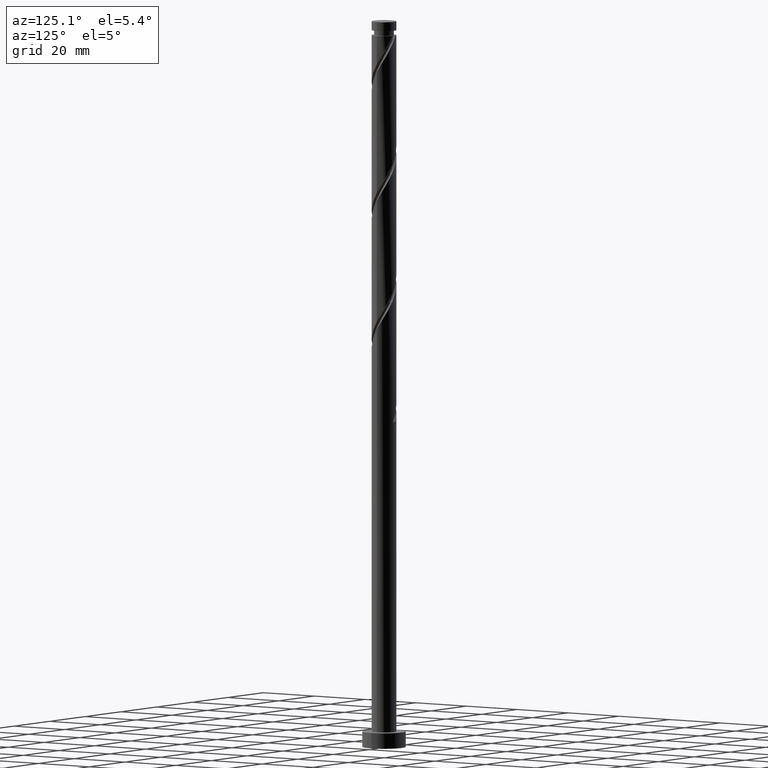
[diagram: clean part render]
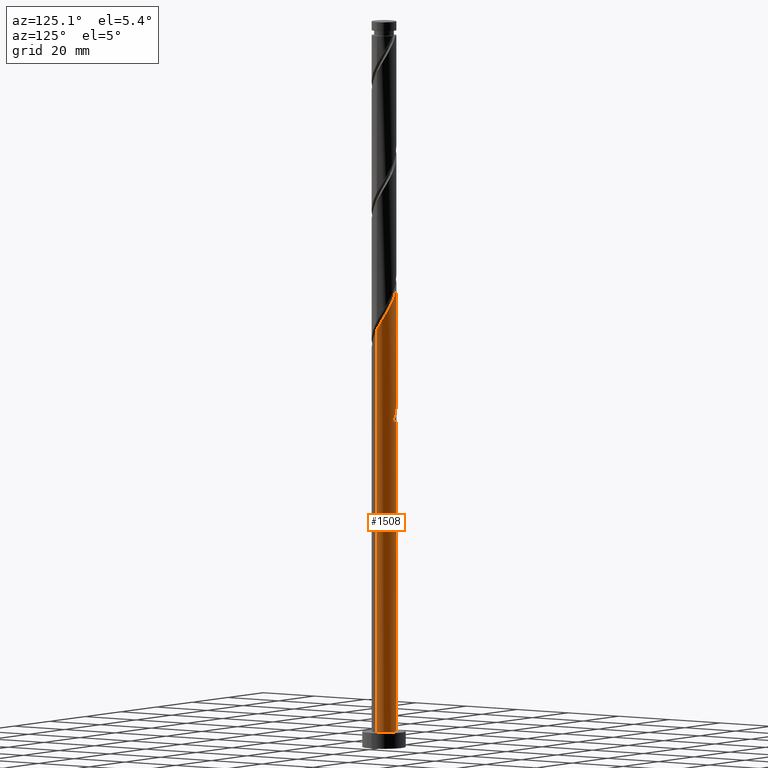
[diagram: same view with one face highlighted and labeled with its STEP entity id]
A machine part, auxiliary view. The second image highlights one B-rep face of the part: STEP entity #1508.
In plain terms, the highlighted cylindrical surface (edge-blend (fillet) strip) has radius 4 mm, axis along (-0, -0, -1).
Its self-contained STEP definition (entity closure, byte-faithful):
#19 = ORIENTED_EDGE ( 'NONE', *, *, #1791, .F. ) ;
#25 = VECTOR ( 'NONE', #831, 1000.000000000000000 ) ;
#32 = ORIENTED_EDGE ( 'NONE', *, *, #186, .T. ) ;
#53 = CARTESIAN_POINT ( 'NONE',  ( -3.948791133313475754, 0.8018362386540688336, 115.9398017775529723 ) ) ;
#66 = CARTESIAN_POINT ( 'NONE',  ( -0.7959899496852985701, 3.920000000000004370, 105.5231351108863151 ) ) ;
#70 = ORIENTED_EDGE ( 'NONE', *, *, #152, .F. ) ;
#84 = VECTOR ( 'NONE', #964, 1000.000000000000000 ) ;
#87 =( BOUNDED_CURVE ( )  B_SPLINE_CURVE ( 2, ( #1605, #334, #1334, #53, #94, #664, #230, #1557, #440, #1692, #704, #729, #1148, #698, #117, #295, #1707 ),
 .UNSPECIFIED., .F., .T. ) 
 B_SPLINE_CURVE_WITH_KNOTS ( ( 3, 2, 2, 2, 2, 2, 2, 2, 3 ),
 ( 0.9295271625973835494, 0.9326923076923077094, 0.9423076923076922906, 0.9519230769230768718, 0.9615384615384615641, 0.9711538461538461453, 0.9807692307692307265, 0.9903846153846154188, 1.000000000000000000 ),
 .UNSPECIFIED. ) 
 CURVE ( )  GEOMETRIC_REPRESENTATION_ITEM ( )  RATIONAL_B_SPLINE_CURVE ( ( 0.9061636035682788526, 0.9069090390690675019, 0.9090909090909238266, 0.9024626128164274785, 0.9090909090909238266, 0.9024626128164274785, 0.9090909090909238266, 0.9024626128164274785, 0.9090909090909238266, 0.9024626128164274785, 0.9090909090909238266, 0.9024626128164274785, 0.9090909090909238266, 0.9024626128164274785, 0.9090909090909238266, 0.9024626128164274785, 0.9090909090909238266 ) ) 
 REPRESENTATION_ITEM ( '' )  );
#94 = CARTESIAN_POINT ( 'NONE',  ( -3.795472800412702519, 1.262690073346326880, 115.1385197262709426 ) ) ;
#117 = CARTESIAN_POINT ( 'NONE',  ( -0.1652574756069100093, 3.996584787885279599, 107.1256992134504316 ) ) ;
#120 = CARTESIAN_POINT ( 'NONE',  ( 3.795472800412709624, 1.262690073346324660, 137.5744171621684018 ) ) ;
#129 = EDGE_CURVE ( 'NONE', #1507, #1627, #1377, .T. ) ;
#134 = ORIENTED_EDGE ( 'NONE', *, *, #129, .T. ) ;
#152 = EDGE_CURVE ( 'NONE', #503, #1627, #87, .T. ) ;
#154 = VERTEX_POINT ( 'NONE', #422 ) ;
#176 = DIRECTION ( 'NONE',  ( -0.000000000000000000, -0.000000000000000000, -1.000000000000000000 ) ) ;
#186 = EDGE_CURVE ( 'NONE', #1431, #768, #833, .T. ) ;
#225 = ORIENTED_EDGE ( 'NONE', *, *, #585, .T. ) ;
#230 = CARTESIAN_POINT ( 'NONE',  ( -3.383001745131675175, 2.134314689176840751, 113.5359556237068261 ) ) ;
#257 = CARTESIAN_POINT ( 'NONE',  ( -4.000000000000005329, -3.709072756255089963E-15, 156.2785465683278119 ) ) ;
#258 = LINE ( 'NONE', #817, #902 ) ;
#259 = LINE ( 'NONE', #989, #25 ) ;
#264 = CARTESIAN_POINT ( 'NONE',  ( 4.000000000000005329, 3.140747091990197197E-15, 135.4452132349944407 ) ) ;
#273 = CARTESIAN_POINT ( 'NONE',  ( 3.383001745131681837, 2.134314689176843416, 139.1769812647324898 ) ) ;
#282 = CARTESIAN_POINT ( 'NONE',  ( 1.116900737103333263, 3.840902594893298883, 143.9846735724247537 ) ) ;
#295 = CARTESIAN_POINT ( 'NONE',  ( 0.3200157754540378652, 4.016650678315774492, 106.3244171621683734 ) ) ;
#296 = EDGE_CURVE ( 'NONE', #154, #768, #259, .T. ) ;
#319 = DIRECTION ( 'NONE',  ( -1.000000000000000000, 0.000000000000000000, 0.000000000000000000 ) ) ;
#331 = CARTESIAN_POINT ( 'NONE',  ( 0.7959899496853001244, 3.919999999999999041, 105.5231351108863151 ) ) ;
#334 = CARTESIAN_POINT ( 'NONE',  ( -3.999999999999998224, 0.1590925213470881505, 117.0035527378118445 ) ) ;
#343 = CARTESIAN_POINT ( 'NONE',  ( -3.999999999999998224, 5.339270056383372193E-15, 117.2677236534448184 ) ) ;
#373 = EDGE_LOOP ( 'NONE', ( #1223, #225, #32, #1084, #1314, #134, #70, #19 ) ) ;
#386 = CARTESIAN_POINT ( 'NONE',  ( -3.869112783325353799, 1.125104012108398388, 112.7346735724247822 ) ) ;
#422 = CARTESIAN_POINT ( 'NONE',  ( -4.000000000000006217, 7.463013328110039892E-15, 114.6118799016610836 ) ) ;
#427 = CARTESIAN_POINT ( 'NONE',  ( 2.423996827517799879, 3.218715916066175797, 141.5808274185786217 ) ) ;
#440 = CARTESIAN_POINT ( 'NONE',  ( -2.773922925134606920, 2.881900693190635021, 111.9333915211427097 ) ) ;
#455 = CARTESIAN_POINT ( 'NONE',  ( -4.000000000000005329, -3.709072756255089963E-15, 156.2785465683278119 ) ) ;
#467 = CARTESIAN_POINT ( 'NONE',  ( -0.7959899496852987921, 3.920000000000005258, 147.1898017775529866 ) ) ;
#503 = VERTEX_POINT ( 'NONE', #343 ) ;
#534 = CARTESIAN_POINT ( 'NONE',  ( -0.7959899496852985701, 3.920000000000004370, 105.5231351108863151 ) ) ;
#585 = EDGE_CURVE ( 'NONE', #910, #1431, #816, .T. ) ;
#609 = CARTESIAN_POINT ( 'NONE',  ( -1.710977332407544127, 3.615599060734970838, 148.7923658801170461 ) ) ;
#616 = EDGE_CURVE ( 'NONE', #1507, #154, #1623, .T. ) ;
#621 = CARTESIAN_POINT ( 'NONE',  ( -3.869112783325353799, 1.125104012108398388, 154.4013402390914393 ) ) ;
#654 = CARTESIAN_POINT ( 'NONE',  ( -3.487428383617972028, 2.018349830254859700, 111.1321094698607084 ) ) ;
#664 = CARTESIAN_POINT ( 'NONE',  ( -3.642154467511929283, 1.723543908038583483, 114.3372376749888701 ) ) ;
#693 = CARTESIAN_POINT ( 'NONE',  ( 4.000000000000000000, 4.898587196589412829E-16, 5.000000000000000000 ) ) ;
#698 = CARTESIAN_POINT ( 'NONE',  ( -0.6505307266678578282, 3.976518897454783374, 107.9269812647324329 ) ) ;
#704 = CARTESIAN_POINT ( 'NONE',  ( -2.003633787528295240, 3.462001104198988877, 110.3308274185786217 ) ) ;
#716 = CARTESIAN_POINT ( 'NONE',  ( -0.3200157754540355892, 4.016650678315782486, 146.3885197262709141 ) ) ;
#729 = CARTESIAN_POINT ( 'NONE',  ( -1.583270747538798817, 3.705286292331802400, 109.5295453672965635 ) ) ;
#765 = DIRECTION ( 'NONE',  ( 0.000000000000000000, -8.673617379884018117E-15, -1.000000000000000000 ) ) ;
#768 = VERTEX_POINT ( 'NONE', #1243 ) ;
#790 = CARTESIAN_POINT ( 'NONE',  ( -1.710977332407544127, 3.615599060734970838, 107.1256992134504031 ) ) ;
#798 = CARTESIAN_POINT ( 'NONE',  ( -4.000000000000006217, 7.463013328110039892E-15, 114.6118799016610836 ) ) ;
#816 = LINE ( 'NONE', #1235, #84 ) ;
#817 = CARTESIAN_POINT ( 'NONE',  ( -4.000000000000000000, 0.000000000000000000, 235.0000000000000284 ) ) ;
#831 = DIRECTION ( 'NONE',  ( -0.000000000000000000, -0.000000000000000000, -1.000000000000000000 ) ) ;
#833 = CIRCLE ( 'NONE', #1087, 4.000000000000000000 ) ;
#836 = CARTESIAN_POINT ( 'NONE',  ( 4.000000000000005329, 0.1590925213470760213, 135.7093841506274146 ) ) ;
#845 = CARTESIAN_POINT ( 'NONE',  ( 3.123849022751427729, 2.545085470315096909, 139.9782633160145053 ) ) ;
#855 = CARTESIAN_POINT ( 'NONE',  ( 0.6505307266678614919, 3.976518897454789592, 144.7859556237068261 ) ) ;
#862 = AXIS2_PLACEMENT_3D ( 'NONE', #1812, #765, #974 ) ;
#871 = DIRECTION ( 'NONE',  ( 1.000000000000000000, 0.000000000000000000, 0.000000000000000000 ) ) ;
#893 = VERTEX_POINT ( 'NONE', #257 ) ;
#894 = CARTESIAN_POINT ( 'NONE',  ( -3.678270583471661581, 1.571726921181628933, 153.6000581878094238 ) ) ;
#902 = VECTOR ( 'NONE', #1672, 1000.000000000000000 ) ;
#907 = CARTESIAN_POINT ( 'NONE',  ( -3.487428383617972028, 2.018349830254859700, 152.7987761365272945 ) ) ;
#910 = VERTEX_POINT ( 'NONE', #1144 ) ;
#925 = CARTESIAN_POINT ( 'NONE',  ( 0.000000000000000000, 0.000000000000000000, 235.0000000000000284 ) ) ;
#952 = CARTESIAN_POINT ( 'NONE',  ( -1.271964123916561551, 3.823349321684228919, 106.3244171621683734 ) ) ;
#964 = DIRECTION ( 'NONE',  ( -0.000000000000000000, -0.000000000000000000, -1.000000000000000000 ) ) ;
#974 = DIRECTION ( 'NONE',  ( 0.000000000000000000, 1.000000000000000000, -6.938893903907228378E-15 ) ) ;
#989 = CARTESIAN_POINT ( 'NONE',  ( -4.000000000000000000, 0.000000000000000000, 235.0000000000000284 ) ) ;
#999 = DIRECTION ( 'NONE',  ( 0.000000000000000000, 0.000000000000000000, 1.000000000000000000 ) ) ;
#1005 = CARTESIAN_POINT ( 'NONE',  ( 2.003633787528301013, 3.462001104198992429, 142.3821094698607226 ) ) ;
#1023 = CARTESIAN_POINT ( 'NONE',  ( -2.149990540898527591, 3.407848799785715421, 149.5936479313991470 ) ) ;
#1034 = CARTESIAN_POINT ( 'NONE',  ( -3.947525597521978291, 0.6457876252366409053, 155.2026222903734833 ) ) ;
#1045 = CARTESIAN_POINT ( 'NONE',  ( -2.526528931719818960, 3.101072646227875040, 150.3949299826811625 ) ) ;
#1084 = ORIENTED_EDGE ( 'NONE', *, *, #296, .F. ) ;
#1087 = AXIS2_PLACEMENT_3D ( 'NONE', #1301, #999, #871 ) ;
#1101 = CARTESIAN_POINT ( 'NONE',  ( -2.903067322541111217, 2.794296492670035992, 109.5295453672965778 ) ) ;
#1144 = CARTESIAN_POINT ( 'NONE',  ( 4.000000000000005329, 3.140747091990197197E-15, 135.4452132349944407 ) ) ;
#1148 = CARTESIAN_POINT ( 'NONE',  ( -1.116900737103328378, 3.840902594893293109, 108.7282633160145053 ) ) ;
#1194 =( BOUNDED_CURVE ( )  B_SPLINE_CURVE ( 2, ( #264, #836, #1406, #1696, #120, #1549, #273, #845, #1412, #427, #1005, #1555, #282, #855, #1422, #716, #467, #1703, #609, #1023, #1045, #1593, #1335, #907, #894, #621, #1034, #1304, #455 ),
 .UNSPECIFIED., .F., .T. ) 
 B_SPLINE_CURVE_WITH_KNOTS ( ( 3, 2, 2, 2, 2, 2, 2, 2, 2, 2, 2, 2, 2, 2, 3 ),
 ( 0.1795271625973833551, 0.1826923076923077094, 0.1923076923076922906, 0.2019230769230768718, 0.2115384615384615641, 0.2211538461538461453, 0.2307692307692307265, 0.2403846153846154188, 0.2500000000000000000, 0.2596153846153845812, 0.2692307692307692735, 0.2788461538461538547, 0.2884615384615384359, 0.2980769230769231282, 0.3045271625973832719 ),
 .UNSPECIFIED. ) 
 CURVE ( )  GEOMETRIC_REPRESENTATION_ITEM ( )  RATIONAL_B_SPLINE_CURVE ( ( 0.9061636035682850698, 0.9069090390690737191, 0.9090909090909303769, 0.9024626128164336958, 0.9090909090909303769, 0.9024626128164336958, 0.9090909090909303769, 0.9024626128164336958, 0.9090909090909303769, 0.9024626128164336958, 0.9090909090909303769, 0.9024626128164336958, 0.9090909090909303769, 0.9024626128164336958, 0.9090909090909303769, 0.9024626128164336958, 0.9090909090909303769, 0.9024626128164336958, 0.9090909090909303769, 0.9024626128164336958, 0.9090909090909303769, 0.9024626128164336958, 0.9090909090909303769, 0.9024626128164336958, 0.9090909090909303769, 0.9024626128164336958, 0.9090909090909303769, 0.9046444828382902426, 0.9061636035682849588 ) ) 
 REPRESENTATION_ITEM ( '' )  );
#1195 = CYLINDRICAL_SURFACE ( 'NONE', #1661, 4.000000000000000000 ) ;
#1212 = FACE_OUTER_BOUND ( 'NONE', #373, .T. ) ;
#1217 = CARTESIAN_POINT ( 'NONE',  ( -3.678270583471661581, 1.571726921181628933, 111.9333915211427239 ) ) ;
#1223 = ORIENTED_EDGE ( 'NONE', *, *, #1435, .F. ) ;
#1235 = CARTESIAN_POINT ( 'NONE',  ( 4.000000000000000000, 4.898587196589412829E-16, 235.0000000000000284 ) ) ;
#1243 = CARTESIAN_POINT ( 'NONE',  ( -4.000000000000000000, 0.000000000000000000, 5.000000000000000000 ) ) ;
#1301 = CARTESIAN_POINT ( 'NONE',  ( 0.000000000000000000, 0.000000000000000000, 5.000000000000000000 ) ) ;
#1304 = CARTESIAN_POINT ( 'NONE',  ( -4.000000000000005329, 0.3250257541481830770, 155.7388458309794999 ) ) ;
#1314 = ORIENTED_EDGE ( 'NONE', *, *, #616, .F. ) ;
#1334 = CARTESIAN_POINT ( 'NONE',  ( -3.987364772516037270, 0.3176825001445944818, 116.7410838288350448 ) ) ;
#1335 = CARTESIAN_POINT ( 'NONE',  ( -3.195247853079541400, 2.406323161462446958, 151.9974940852452789 ) ) ;
#1358 = CARTESIAN_POINT ( 'NONE',  ( -2.526528931719818960, 3.101072646227875040, 108.7282633160144769 ) ) ;
#1377 = CIRCLE ( 'NONE', #862, 4.000000000000000000 ) ;
#1406 = CARTESIAN_POINT ( 'NONE',  ( 3.987364772516044376, 0.3176825001445913732, 135.9718530596042569 ) ) ;
#1412 = CARTESIAN_POINT ( 'NONE',  ( 2.773922925134613582, 2.881900693190637686, 140.7795453672965778 ) ) ;
#1422 = CARTESIAN_POINT ( 'NONE',  ( 0.1652574756069146444, 3.996584787885285817, 145.5872376749888701 ) ) ;
#1431 = VERTEX_POINT ( 'NONE', #693 ) ;
#1435 = EDGE_CURVE ( 'NONE', #910, #893, #1194, .T. ) ;
#1507 = VERTEX_POINT ( 'NONE', #66 ) ;
#1508 = ADVANCED_FACE ( 'NONE', ( #1212 ), #1195, .T. ) ;
#1549 = CARTESIAN_POINT ( 'NONE',  ( 3.642154467511936389, 1.723543908038583705, 138.3756992134504742 ) ) ;
#1555 = CARTESIAN_POINT ( 'NONE',  ( 1.583270747538803036, 3.705286292331808173, 143.1833915211427097 ) ) ;
#1557 = CARTESIAN_POINT ( 'NONE',  ( -3.123849022751420179, 2.545085470315096465, 112.7346735724247679 ) ) ;
#1593 = CARTESIAN_POINT ( 'NONE',  ( -2.903067322541111217, 2.794296492670035992, 151.1962120339632349 ) ) ;
#1605 = CARTESIAN_POINT ( 'NONE',  ( -3.999999999999998224, 5.339270056383372982E-15, 117.2677236534448184 ) ) ;
#1623 =( BOUNDED_CURVE ( )  B_SPLINE_CURVE ( 2, ( #534, #952, #790, #1637, #1358, #1101, #1653, #654, #1217, #386, #1645, #1776, #798 ),
 .UNSPECIFIED., .F., .T. ) 
 B_SPLINE_CURVE_WITH_KNOTS ( ( 3, 2, 2, 2, 2, 2, 3 ),
 ( 0.000000000000000000, 0.009615384615384581224, 0.01923076923076927347, 0.02884615384615385469, 0.03846153846153843592, 0.04807692307692312816, 0.05452716259738316779 ),
 .UNSPECIFIED. ) 
 CURVE ( )  GEOMETRIC_REPRESENTATION_ITEM ( )  RATIONAL_B_SPLINE_CURVE ( ( 0.9090909090909303769, 0.9024626128164336958, 0.9090909090909303769, 0.9024626128164336958, 0.9090909090909303769, 0.9024626128164336958, 0.9090909090909303769, 0.9024626128164336958, 0.9090909090909303769, 0.9024626128164336958, 0.9090909090909303769, 0.9046444828382904646, 0.9061636035682849588 ) ) 
 REPRESENTATION_ITEM ( '' )  );
#1627 = VERTEX_POINT ( 'NONE', #331 ) ;
#1637 = CARTESIAN_POINT ( 'NONE',  ( -2.149990540898527591, 3.407848799785715421, 107.9269812647324471 ) ) ;
#1645 = CARTESIAN_POINT ( 'NONE',  ( -3.947525597521978291, 0.6457876252366409053, 113.5359556237068404 ) ) ;
#1653 = CARTESIAN_POINT ( 'NONE',  ( -3.195247853079541400, 2.406323161462446958, 110.3308274185786360 ) ) ;
#1661 = AXIS2_PLACEMENT_3D ( 'NONE', #925, #176, #319 ) ;
#1672 = DIRECTION ( 'NONE',  ( -0.000000000000000000, -0.000000000000000000, -1.000000000000000000 ) ) ;
#1692 = CARTESIAN_POINT ( 'NONE',  ( -2.423996827517791885, 3.218715916066172689, 111.1321094698606515 ) ) ;
#1696 = CARTESIAN_POINT ( 'NONE',  ( 3.948791133313483304, 0.8018362386540686115, 136.7731351108863294 ) ) ;
#1703 = CARTESIAN_POINT ( 'NONE',  ( -1.271964123916561551, 3.823349321684228919, 147.9910838288350590 ) ) ;
#1707 = CARTESIAN_POINT ( 'NONE',  ( 0.7959899496853001244, 3.919999999999999041, 105.5231351108863294 ) ) ;
#1776 = CARTESIAN_POINT ( 'NONE',  ( -4.000000000000004441, 0.3250257541481882395, 114.0721791643127858 ) ) ;
#1791 = EDGE_CURVE ( 'NONE', #893, #503, #258, .T. ) ;
#1812 = CARTESIAN_POINT ( 'NONE',  ( 0.000000000000000000, 0.000000000000000000, 105.5231351108863436 ) ) ;